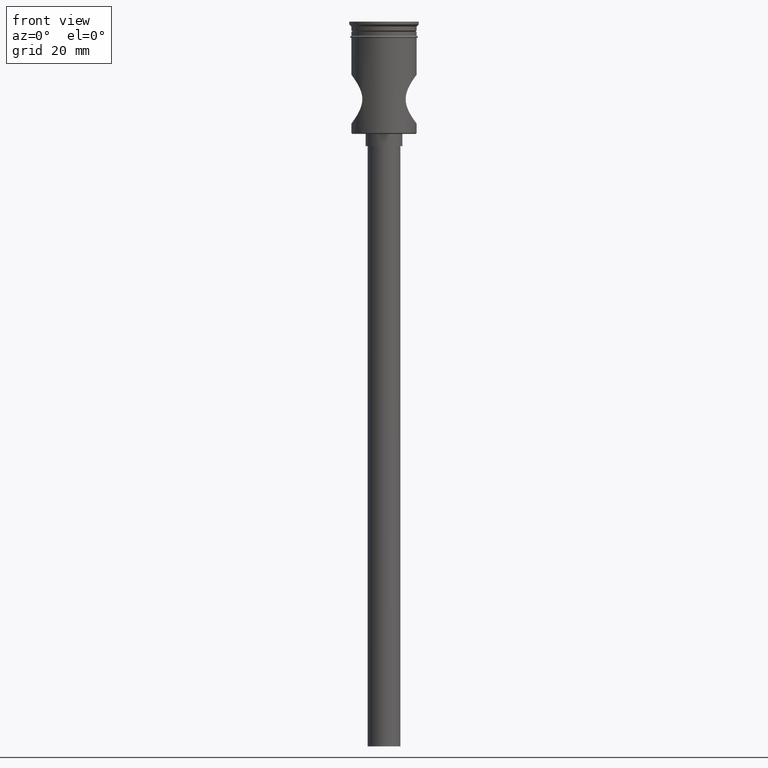
[diagram: clean part render]
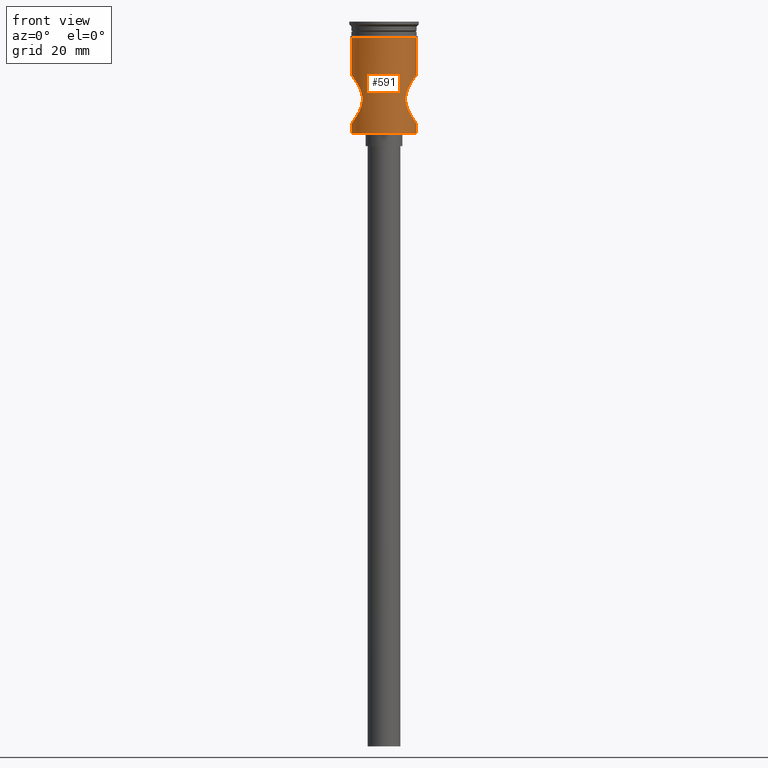
[diagram: same view with one face highlighted and labeled with its STEP entity id]
A machine part, front view. The second image highlights one B-rep face of the part: STEP entity #591.
In plain terms, the highlighted cylindrical surface (edge-blend (fillet) strip) has radius 8 mm, axis along (-0, -0, 1).
Its self-contained STEP definition (entity closure, byte-faithful):
#2 = ORIENTED_EDGE ( 'NONE', *, *, #1269, .F. ) ;
#8 = CARTESIAN_POINT ( 'NONE',  ( -5.291499639625486751, -6.000002630321014330, -18.79521987294451080 ) ) ;
#22 = CARTESIAN_POINT ( 'NONE',  ( 6.428408221799561062, -4.769379950103073362, -22.65971221525528634 ) ) ;
#68 = CARTESIAN_POINT ( 'NONE',  ( 7.960178332295267722, -0.8233858112076420932, -13.05318252701359505 ) ) ;
#70 = CIRCLE ( 'NONE', #949, 7.999999999999996447 ) ;
#74 = EDGE_CURVE ( 'NONE', #502, #1332, #1169, .T. ) ;
#78 = EDGE_CURVE ( 'NONE', #1483, #341, #70, .T. ) ;
#81 = CARTESIAN_POINT ( 'NONE',  ( 5.303887827319023529, -5.989138807782577345, -18.58493257538529875 ) ) ;
#87 = CARTESIAN_POINT ( 'NONE',  ( 7.999999999999996447, 0.000000000000000000, -27.30000000000000426 ) ) ;
#88 = CARTESIAN_POINT ( 'NONE',  ( 7.999999999999996447, 3.674711311745778243E-24, -13.00000000000000533 ) ) ;
#108 = CARTESIAN_POINT ( 'NONE',  ( -7.999999999999996447, 9.797174393178821713E-16, 0.000000000000000000 ) ) ;
#113 = CARTESIAN_POINT ( 'NONE',  ( -7.999999999999996447, 9.797174356432676922E-16, -13.00000000000000533 ) ) ;
#119 = EDGE_LOOP ( 'NONE', ( #226, #1322, #971, #831, #979, #2, #1408, #1163 ) ) ;
#121 = CARTESIAN_POINT ( 'NONE',  ( 7.092607887154920299, -3.704399776580873382, -23.72372303530257298 ) ) ;
#130 = CARTESIAN_POINT ( 'NONE',  ( 0.000000000000000000, 0.000000000000000000, -27.30000000000000426 ) ) ;
#135 = CARTESIAN_POINT ( 'NONE',  ( 7.999999999999996447, 3.674711311745778243E-24, -13.00000000000000533 ) ) ;
#140 = CARTESIAN_POINT ( 'NONE',  ( -7.999999999999996447, -0.4161879994587697751, -25.00000000000000355 ) ) ;
#160 = CARTESIAN_POINT ( 'NONE',  ( -5.341952933818356009, -5.956343020881683437, -19.82666753736794618 ) ) ;
#173 = AXIS2_PLACEMENT_3D ( 'NONE', #1506, #1181, #238 ) ;
#192 = CARTESIAN_POINT ( 'NONE',  ( 5.528728542356218689, -5.782767647903217068, -17.38791116192859221 ) ) ;
#211 = CARTESIAN_POINT ( 'NONE',  ( 7.837238599853708187, -1.617585761159319846, -13.21864966473142644 ) ) ;
#226 = ORIENTED_EDGE ( 'NONE', *, *, #1470, .F. ) ;
#237 = CARTESIAN_POINT ( 'NONE',  ( 6.598787025335901113, -4.533655066149034241, -22.94815787054485412 ) ) ;
#238 = DIRECTION ( 'NONE',  ( 1.000000000000000000, 0.000000000000000000, 0.000000000000000000 ) ) ;
#244 = VERTEX_POINT ( 'NONE', #135 ) ;
#261 = CARTESIAN_POINT ( 'NONE',  ( -7.697512327894634687, -2.187332674909134411, -13.40941737064048489 ) ) ;
#273 = CARTESIAN_POINT ( 'NONE',  ( -5.933514355146049191, -5.370016379611007196, -21.70410386792428170 ) ) ;
#281 = CARTESIAN_POINT ( 'NONE',  ( 5.859839614964075238, -5.447306643968808260, -21.52271597277528059 ) ) ;
#283 = CARTESIAN_POINT ( 'NONE',  ( -5.648998666191806350, -5.665331633315696891, -20.98569890523691583 ) ) ;
#325 = LINE ( 'NONE', #800, #775 ) ;
#336 = CARTESIAN_POINT ( 'NONE',  ( 7.094299755750173020, -3.714105956844027112, -14.27193636968089585 ) ) ;
#337 = CARTESIAN_POINT ( 'NONE',  ( 7.999999999999996447, 0.000000000000000000, 0.000000000000000000 ) ) ;
#341 = VERTEX_POINT ( 'NONE', #87 ) ;
#342 = CARTESIAN_POINT ( 'NONE',  ( 0.000000000000000000, 0.000000000000000000, 0.000000000000000000 ) ) ;
#343 = CARTESIAN_POINT ( 'NONE',  ( 8.000000000000003553, -0.2050786897151755939, -12.99999999999999467 ) ) ;
#351 = CARTESIAN_POINT ( 'NONE',  ( 7.524109323248029391, -2.744670825570128425, -24.35015039146814075 ) ) ;
#369 = CARTESIAN_POINT ( 'NONE',  ( 6.178944471944527450, -5.083158423289842354, -22.19321469611283604 ) ) ;
#376 = CARTESIAN_POINT ( 'NONE',  ( -6.095265202635743229, -5.188384097884396695, -15.96330462474424294 ) ) ;
#384 = CARTESIAN_POINT ( 'NONE',  ( -7.392183792285976551, -3.078563709593461262, -13.83574790663121235 ) ) ;
#390 = CARTESIAN_POINT ( 'NONE',  ( -6.426683704192724278, -4.771690908225657779, -22.65669169386859494 ) ) ;
#434 = CARTESIAN_POINT ( 'NONE',  ( -8.000000000000005329, -0.4110175701281973404, -12.99999999999999822 ) ) ;
#436 = CARTESIAN_POINT ( 'NONE',  ( 5.717670742267799255, -5.596336919971242274, -16.82796284348983917 ) ) ;
#449 = CARTESIAN_POINT ( 'NONE',  ( 7.526744538711455768, -2.737435864263672691, -13.64615235571890395 ) ) ;
#466 = EDGE_CURVE ( 'NONE', #341, #921, #468, .T. ) ;
#468 = LINE ( 'NONE', #1287, #1191 ) ;
#493 = CARTESIAN_POINT ( 'NONE',  ( -5.291508588819593406, -5.999994737873667106, -19.40979141361455618 ) ) ;
#496 = CARTESIAN_POINT ( 'NONE',  ( -6.602014270987718092, -4.528930003495661438, -15.04648686704186211 ) ) ;
#502 = VERTEX_POINT ( 'NONE', #113 ) ;
#509 = CARTESIAN_POINT ( 'NONE',  ( 7.694334963991131815, -2.198537974230715175, -24.58621182590502485 ) ) ;
#511 = CARTESIAN_POINT ( 'NONE',  ( -7.967750386662301842, -0.8225813075346136705, -24.95718867133072649 ) ) ;
#517 = CARTESIAN_POINT ( 'NONE',  ( -7.095043372362063394, -3.712647680833708552, -23.72917063698660911 ) ) ;
#554 = CARTESIAN_POINT ( 'NONE',  ( 5.932300773519818549, -5.371293148560218000, -16.29886334358921474 ) ) ;
#563 = CARTESIAN_POINT ( 'NONE',  ( 5.351298131410347381, -5.946815791029208320, -18.17692857331259404 ) ) ;
#590 = DIRECTION ( 'NONE',  ( -0.000000000000000000, -0.000000000000000000, 1.000000000000000000 ) ) ;
#591 = ADVANCED_FACE ( 'NONE', ( #1377 ), #1267, .T. ) ;
#595 = CARTESIAN_POINT ( 'NONE',  ( 7.991786201921674326, -0.4171226887462311517, -24.98906086098486767 ) ) ;
#602 = CARTESIAN_POINT ( 'NONE',  ( 6.849379830468326880, -4.136484081211208697, -23.35028667483850384 ) ) ;
#613 = CARTESIAN_POINT ( 'NONE',  ( -7.753317466694377380, -2.007594612796119282, -24.66794618566808239 ) ) ;
#626 = CARTESIAN_POINT ( 'NONE',  ( 5.643916026891301563, -5.673596022587065413, -20.98979656833889607 ) ) ;
#629 = CARTESIAN_POINT ( 'NONE',  ( -7.999999999999996447, 0.000000000000000000, -25.00000000000000000 ) ) ;
#634 = CARTESIAN_POINT ( 'NONE',  ( 5.937193840094633579, -5.363245192895815805, -21.69666719771004537 ) ) ;
#636 = CARTESIAN_POINT ( 'NONE',  ( -7.390068150002869096, -3.069273339745733242, -24.15922233971243926 ) ) ;
#654 = CIRCLE ( 'NONE', #173, 8.000000000000000000 ) ;
#662 = CARTESIAN_POINT ( 'NONE',  ( -7.875627092851999578, -1.419784017982114177, -13.16679506876979211 ) ) ;
#668 = EDGE_CURVE ( 'NONE', #1428, #502, #891, .T. ) ;
#673 = CARTESIAN_POINT ( 'NONE',  ( 5.474655730134189824, -5.833676180865436045, -17.58271699258815346 ) ) ;
#691 = CARTESIAN_POINT ( 'NONE',  ( 7.999999999999996447, 0.000000000000000000, -25.00000000000000000 ) ) ;
#708 = B_SPLINE_CURVE_WITH_KNOTS ( 'NONE', 3,
 ( #88, #343, #902, #68, #782, #1039, #211, #1485, #819, #449, #1472, #336, #810, #1268, #1262, #1348, #554, #436, #1247, #192, #673, #1147, #563, #81, #941, #709, #1063, #989, #626, #281, #634, #1100, #369, #22, #237, #602, #1313, #121, #754, #1323, #351, #509, #1288, #1280, #1429, #1435, #1073, #595, #842, #1519 ),
 .UNSPECIFIED., .F., .F.,
 ( 4, 2, 2, 2, 2, 2, 2, 2, 2, 2, 2, 2, 2, 2, 2, 2, 2, 2, 2, 2, 2, 2, 2, 2, 4 ),
 ( 0.01965158138171595528, 0.02026440806685870719, 0.02087723475200145562, 0.02149006143714420752, 0.02210288812228695596, 0.02332854149257245630, 0.02455419486285795663, 0.02577984823314345697, 0.02700550160342896078, 0.02761832828857171268, 0.02823115497371446805, 0.02884398165885722343, 0.02945680834399997880, 0.03068246171428548608, 0.03190811508457100376, 0.03252094176971375566, 0.03313376845485650757, 0.03435942182514201831, 0.03497224851028477716, 0.03558507519542753600, 0.03681072856571306062, 0.03742355525085581947, 0.03803638193599857831, 0.03864920862114134409, 0.03926203530628410293 ),
 .UNSPECIFIED. ) ;
#709 = CARTESIAN_POINT ( 'NONE',  ( 5.291564416442853691, -5.999945502536777830, -19.41375567364516996 ) ) ;
#732 = CARTESIAN_POINT ( 'NONE',  ( -5.350380422783078238, -5.947639811124360243, -18.18292303966837054 ) ) ;
#736 = CARTESIAN_POINT ( 'NONE',  ( -6.933994888437767123, -4.002208169122735804, -23.48599343389725291 ) ) ;
#748 = CARTESIAN_POINT ( 'NONE',  ( -6.428305707969261817, -4.769535948342529252, -15.34044057477573908 ) ) ;
#754 = CARTESIAN_POINT ( 'NONE',  ( 7.169789722930491216, -3.553058473854126653, -23.83860449815401594 ) ) ;
#775 = VECTOR ( 'NONE', #1035, 1000.000000000000000 ) ;
#780 = CARTESIAN_POINT ( 'NONE',  ( -7.968510204580123713, -0.8173127755210322087, -13.04179007278579938 ) ) ;
#782 = CARTESIAN_POINT ( 'NONE',  ( 7.936580320267932365, -1.025211991777380316, -13.08475919831038503 ) ) ;
#800 = CARTESIAN_POINT ( 'NONE',  ( -7.999999999999996447, 9.797174393178821713E-16, 0.000000000000000000 ) ) ;
#810 = CARTESIAN_POINT ( 'NONE',  ( 6.932348065000019766, -4.004981294134715597, -14.51657531287132841 ) ) ;
#818 = DIRECTION ( 'NONE',  ( -0.000000000000000000, -0.000000000000000000, 1.000000000000000000 ) ) ;
#819 = CARTESIAN_POINT ( 'NONE',  ( 7.696444758544893183, -2.191140728972406304, -13.41088448561661295 ) ) ;
#831 = ORIENTED_EDGE ( 'NONE', *, *, #1489, .F. ) ;
#842 = CARTESIAN_POINT ( 'NONE',  ( 7.999999999999998224, -0.2076584939606448688, -25.00000000000000711 ) ) ;
#849 = CARTESIAN_POINT ( 'NONE',  ( -5.717181671610946481, -5.596851870810901630, -21.17084374095739108 ) ) ;
#857 = CARTESIAN_POINT ( 'NONE',  ( -5.474514516413028886, -5.833807645266261943, -20.41669993575522923 ) ) ;
#861 = VERTEX_POINT ( 'NONE', #1364 ) ;
#864 = CARTESIAN_POINT ( 'NONE',  ( -5.474412988877311648, -5.833905236971782315, -17.58356884929880692 ) ) ;
#869 = CARTESIAN_POINT ( 'NONE',  ( -5.527877811876815706, -5.783575200193207699, -17.39087967744914920 ) ) ;
#876 = CARTESIAN_POINT ( 'NONE',  ( -6.600129246405440853, -4.531693863514760778, -22.95038707538192924 ) ) ;
#891 = B_SPLINE_CURVE_WITH_KNOTS ( 'NONE', 3,
 ( #629, #140, #511, #1325, #613, #1315, #982, #636, #1425, #517, #736, #876, #390, #1222, #273, #849, #283, #1432, #857, #160, #493, #8, #1297, #732, #1197, #864, #869, #966, #1409, #1088, #376, #748, #496, #973, #1416, #384, #1303, #261, #897, #1143, #662, #780, #434, #1000 ),
 .UNSPECIFIED., .F., .F.,
 ( 4, 2, 2, 2, 2, 2, 2, 2, 2, 2, 2, 2, 2, 2, 2, 2, 2, 2, 2, 2, 2, 4 ),
 ( 0.000000000000000000, 0.001228223836357230292, 0.002456447672714460583, 0.003070559590893076705, 0.003684671509071692826, 0.004912895345428925503, 0.006141119181786157746, 0.007369343018143389989, 0.007983454936322012183, 0.008597566854500634376, 0.009825790690857877027, 0.01043990260903650269, 0.01105401452721512835, 0.01166812644539375401, 0.01228223836357237968, 0.01351046219992964315, 0.01473868603628690661, 0.01596690987264417008, 0.01719513370900143182, 0.01780924562718006268, 0.01842335754535869355, 0.01965158138171595875 ),
 .UNSPECIFIED. ) ;
#897 = CARTESIAN_POINT ( 'NONE',  ( -7.748219018226240706, -2.000946089715706311, -13.33991246093565408 ) ) ;
#902 = CARTESIAN_POINT ( 'NONE',  ( 7.991997215772789431, -0.4127757007396756772, -13.01065792661720621 ) ) ;
#921 = VERTEX_POINT ( 'NONE', #691 ) ;
#926 = VECTOR ( 'NONE', #1486, 1000.000000000000000 ) ;
#941 = CARTESIAN_POINT ( 'NONE',  ( 5.291471813663452650, -6.000027170513402730, -18.79430872448704903 ) ) ;
#949 = AXIS2_PLACEMENT_3D ( 'NONE', #130, #590, #1058 ) ;
#966 = CARTESIAN_POINT ( 'NONE',  ( -5.649101405964834122, -5.665229783906034378, -17.01400357395085550 ) ) ;
#971 = ORIENTED_EDGE ( 'NONE', *, *, #466, .T. ) ;
#973 = CARTESIAN_POINT ( 'NONE',  ( -6.935409427810202310, -3.999736926290282657, -14.51184028921589508 ) ) ;
#979 = ORIENTED_EDGE ( 'NONE', *, *, #1219, .T. ) ;
#982 = CARTESIAN_POINT ( 'NONE',  ( -7.522790365168886773, -2.727851025529602236, -24.34760159016908077 ) ) ;
#989 = CARTESIAN_POINT ( 'NONE',  ( 5.519437917285259232, -5.792285672141820996, -20.61683396324643880 ) ) ;
#1000 = CARTESIAN_POINT ( 'NONE',  ( -7.999999999999996447, 9.797174356432676922E-16, -13.00000000000000533 ) ) ;
#1035 = DIRECTION ( 'NONE',  ( -0.000000000000000000, -0.000000000000000000, 1.000000000000000000 ) ) ;
#1039 = CARTESIAN_POINT ( 'NONE',  ( 7.875112291323482339, -1.422312626392035151, -13.16749109191734313 ) ) ;
#1048 = CARTESIAN_POINT ( 'NONE',  ( -7.999999999999996447, 0.000000000000000000, -25.00000000000000000 ) ) ;
#1058 = DIRECTION ( 'NONE',  ( -1.000000000000000000, 0.000000000000000000, 0.000000000000000000 ) ) ;
#1063 = CARTESIAN_POINT ( 'NONE',  ( 5.340955530264041684, -5.957261304845339112, -19.82204812401647231 ) ) ;
#1073 = CARTESIAN_POINT ( 'NONE',  ( 7.959626168830806314, -0.8288481689406960173, -24.94607871179749736 ) ) ;
#1088 = CARTESIAN_POINT ( 'NONE',  ( -5.934194063793427176, -5.369288296893337531, -16.29430799600839208 ) ) ;
#1095 = VECTOR ( 'NONE', #1192, 1000.000000000000000 ) ;
#1100 = CARTESIAN_POINT ( 'NONE',  ( 6.096832542624035511, -5.181052271612230697, -22.03201423696313199 ) ) ;
#1143 = CARTESIAN_POINT ( 'NONE',  ( -7.837185563733802596, -1.617777997116382815, -13.21872241145037563 ) ) ;
#1147 = CARTESIAN_POINT ( 'NONE',  ( 5.386132118162889171, -5.915506229595404619, -17.97664524532638808 ) ) ;
#1163 = ORIENTED_EDGE ( 'NONE', *, *, #668, .F. ) ;
#1169 = LINE ( 'NONE', #108, #1095 ) ;
#1173 = DIRECTION ( 'NONE',  ( 1.000000000000000000, 0.000000000000000000, 0.000000000000000000 ) ) ;
#1174 = LINE ( 'NONE', #337, #926 ) ;
#1181 = DIRECTION ( 'NONE',  ( -0.000000000000000000, -0.000000000000000000, 1.000000000000000000 ) ) ;
#1191 = VECTOR ( 'NONE', #1511, 1000.000000000000000 ) ;
#1192 = DIRECTION ( 'NONE',  ( -0.000000000000000000, -0.000000000000000000, 1.000000000000000000 ) ) ;
#1197 = CARTESIAN_POINT ( 'NONE',  ( -5.385705311345801327, -5.915896059439942789, -17.97877459268462275 ) ) ;
#1219 = EDGE_CURVE ( 'NONE', #244, #861, #1174, .T. ) ;
#1222 = CARTESIAN_POINT ( 'NONE',  ( -6.094205644570489966, -5.189600670481773648, -22.03454661334870579 ) ) ;
#1247 = CARTESIAN_POINT ( 'NONE',  ( 5.650483228049788309, -5.663857365279293177, -17.01003722717181788 ) ) ;
#1262 = CARTESIAN_POINT ( 'NONE',  ( 6.426120009460146498, -4.772495035090829951, -15.34422494722665498 ) ) ;
#1267 = CYLINDRICAL_SURFACE ( 'NONE', #1274, 7.999999999999996447 ) ;
#1268 = CARTESIAN_POINT ( 'NONE',  ( 6.599412474671013662, -4.532668071879426108, -15.05083651367930564 ) ) ;
#1269 = EDGE_CURVE ( 'NONE', #1332, #861, #654, .T. ) ;
#1274 = AXIS2_PLACEMENT_3D ( 'NONE', #342, #818, #1173 ) ;
#1280 = CARTESIAN_POINT ( 'NONE',  ( 7.835858405065168064, -1.624274161447293752, -24.77948060674688691 ) ) ;
#1287 = CARTESIAN_POINT ( 'NONE',  ( 7.999999999999996447, 0.000000000000000000, 0.000000000000000000 ) ) ;
#1288 = CARTESIAN_POINT ( 'NONE',  ( 7.746242821178788596, -2.008647717025523693, -24.65738428818450245 ) ) ;
#1297 = CARTESIAN_POINT ( 'NONE',  ( -5.303431297491206564, -5.989541423528397246, -18.59082079987659597 ) ) ;
#1303 = CARTESIAN_POINT ( 'NONE',  ( -7.528683465599921298, -2.731923562265711869, -13.64343887222186957 ) ) ;
#1313 = CARTESIAN_POINT ( 'NONE',  ( 6.932510933914957540, -3.995992554649491435, -23.47975228357175581 ) ) ;
#1315 = CARTESIAN_POINT ( 'NONE',  ( -7.584438918382732098, -2.551936178765120911, -24.43384157505064991 ) ) ;
#1322 = ORIENTED_EDGE ( 'NONE', *, *, #78, .T. ) ;
#1323 = CARTESIAN_POINT ( 'NONE',  ( 7.390764062597867223, -3.081727328898058893, -24.16219223809559935 ) ) ;
#1325 = CARTESIAN_POINT ( 'NONE',  ( -7.845111153738293375, -1.617379738080571894, -24.79213429196722984 ) ) ;
#1326 = CARTESIAN_POINT ( 'NONE',  ( -8.000000000000000000, 9.797174393178825657E-16, -3.999999999999997335 ) ) ;
#1332 = VERTEX_POINT ( 'NONE', #1326 ) ;
#1348 = CARTESIAN_POINT ( 'NONE',  ( 6.092548161367391302, -5.191587824295141651, -15.96869401757641427 ) ) ;
#1364 = CARTESIAN_POINT ( 'NONE',  ( 8.000000000000000000, 0.000000000000000000, -3.999999999999997335 ) ) ;
#1377 = FACE_OUTER_BOUND ( 'NONE', #119, .T. ) ;
#1378 = CARTESIAN_POINT ( 'NONE',  ( -7.999999999999996447, 9.797174393178821713E-16, -27.30000000000000426 ) ) ;
#1408 = ORIENTED_EDGE ( 'NONE', *, *, #74, .F. ) ;
#1409 = CARTESIAN_POINT ( 'NONE',  ( -5.717260744181802856, -5.596776624407739931, -16.82891779856495518 ) ) ;
#1416 = CARTESIAN_POINT ( 'NONE',  ( -7.095827365271403231, -3.710952672189014034, -14.26968452820924504 ) ) ;
#1425 = CARTESIAN_POINT ( 'NONE',  ( -7.318622431870950962, -3.235523761949522292, -24.05653912422262408 ) ) ;
#1428 = VERTEX_POINT ( 'NONE', #1048 ) ;
#1429 = CARTESIAN_POINT ( 'NONE',  ( 7.873944427309547578, -1.428810887794780715, -24.83093286763472562 ) ) ;
#1432 = CARTESIAN_POINT ( 'NONE',  ( -5.527830583457349789, -5.783619756404974943, -20.60895157510371334 ) ) ;
#1435 = CARTESIAN_POINT ( 'NONE',  ( 7.935826362832942849, -1.031097151778474608, -24.91423007022370228 ) ) ;
#1470 = EDGE_CURVE ( 'NONE', #1483, #1428, #325, .T. ) ;
#1472 = CARTESIAN_POINT ( 'NONE',  ( 7.392840448243053864, -3.077268624920921347, -13.83477139314359050 ) ) ;
#1483 = VERTEX_POINT ( 'NONE', #1378 ) ;
#1485 = CARTESIAN_POINT ( 'NONE',  ( 7.748015674478846648, -2.001785621332208720, -13.34018995724740897 ) ) ;
#1486 = DIRECTION ( 'NONE',  ( -0.000000000000000000, -0.000000000000000000, 1.000000000000000000 ) ) ;
#1489 = EDGE_CURVE ( 'NONE', #244, #921, #708, .T. ) ;
#1506 = CARTESIAN_POINT ( 'NONE',  ( 0.000000000000000000, 0.000000000000000000, -3.999999999999997335 ) ) ;
#1511 = DIRECTION ( 'NONE',  ( -0.000000000000000000, -0.000000000000000000, 1.000000000000000000 ) ) ;
#1519 = CARTESIAN_POINT ( 'NONE',  ( 7.999999999999996447, 0.000000000000000000, -25.00000000000000000 ) ) ;